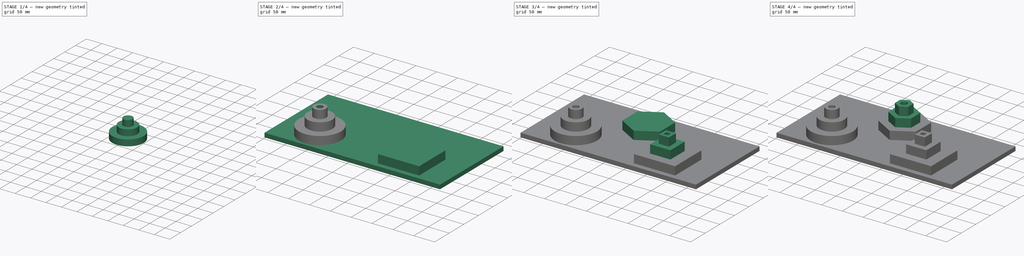
[diagram: build sequence overview — one tinted view per stage of 4, left to right]
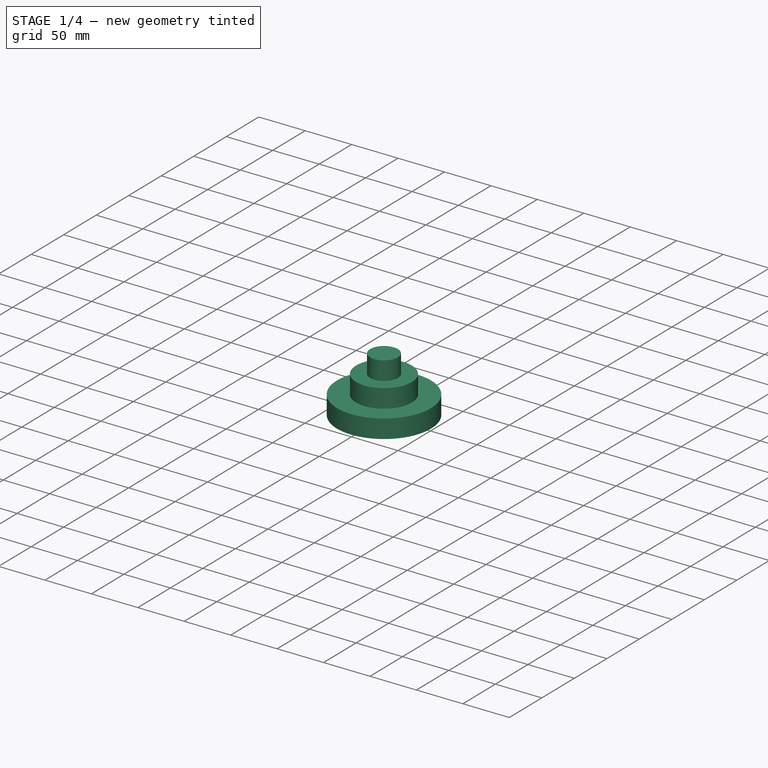
[diagram: stage 1 of 4 — iso view after this stage's code; geometry added in this stage tinted green]
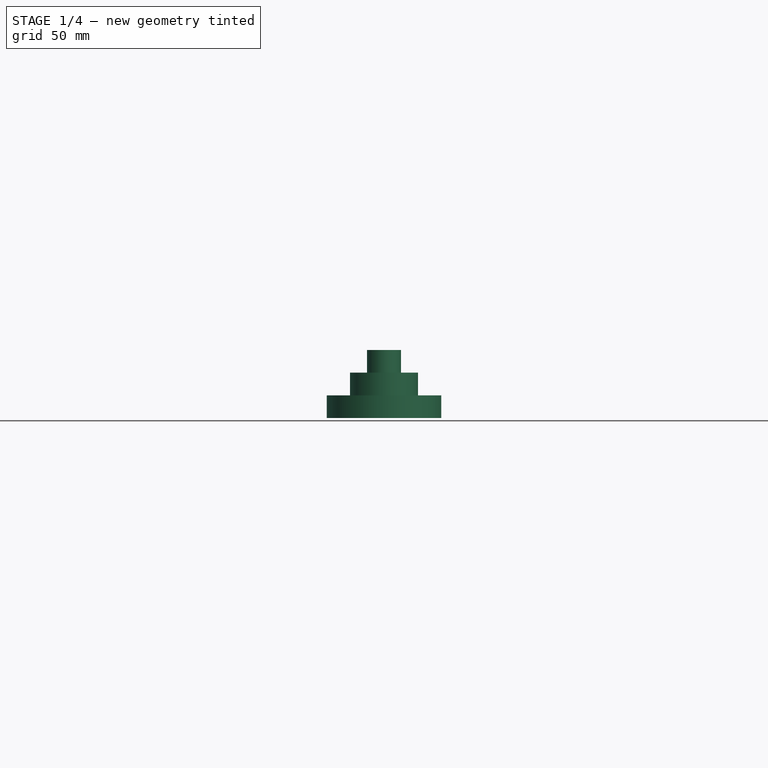
[diagram: stage 1 of 4 — front view after this stage's code; geometry added in this stage tinted green]
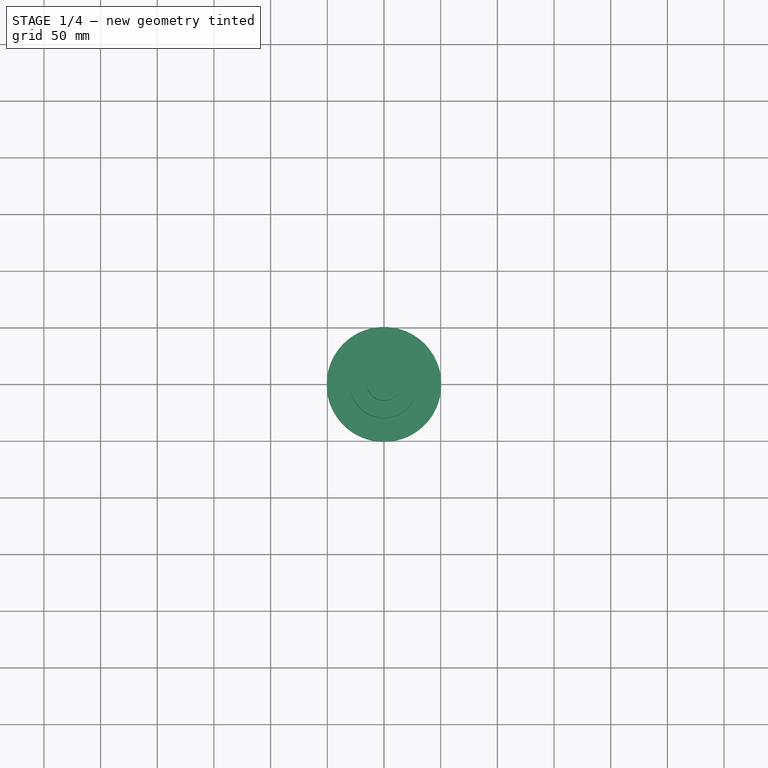
[diagram: stage 1 of 4 — top view after this stage's code; geometry added in this stage tinted green]
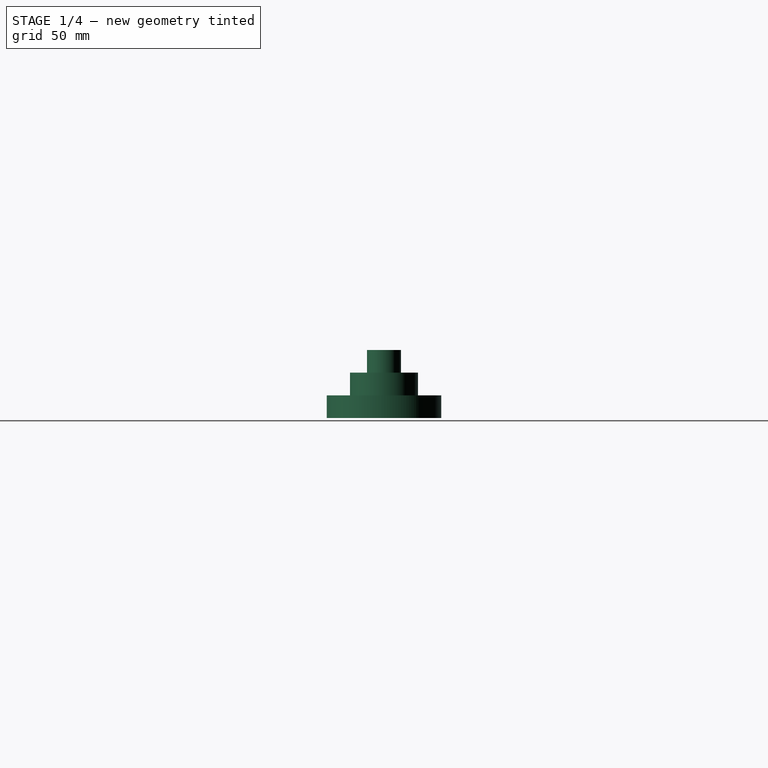
[diagram: stage 1 of 4 — right view after this stage's code; geometry added in this stage tinted green]
FCSTD DOCUMENT  (FreeCAD 0.20R25644 (Git))
Label: chamfertest
License: All rights reserved
LicenseURL: http://en.wikipedia.org/wiki/All_rights_reserved
objects: Sketcher::SketchObject×13, PartDesign::Pad×10, PartDesign::Pocket×3, PartDesign::Body×1
note: 40 computed .brp shape members not serialized (recipe doc carries the construction recipe); baked Part::Feature solids carry a one-line shape summary decoded from their .brp

FEATURE [Sketcher::SketchObject] Sketch
  FullyConstrained = false
  MapMode = 5
  Support = -> [XY_Plane]
  sketch-geometry (1):
    g0: Circle CenterX=0 CenterY=0 CenterZ=0 NormalX=0 NormalY=0 NormalZ=1 AngleXU=0 Radius=50.5402
  constraints (1):
    c: Coincident(g0,g-1)
FEATURE [PartDesign::Pad] Pad
  Direction = (0,0,1)
  Length = 20
  Length2 = 100
  Profile = -> Sketch
  Type = 0
FEATURE [Sketcher::SketchObject] Sketch001
  FullyConstrained = false
  MapMode = 5
  Placement = pos=(0,0,20) rot=(0,0,1;0rad)
  Support = -> [Pad]
  sketch-geometry (1):
    g0: Circle CenterX=0 CenterY=0 CenterZ=0 NormalX=0 NormalY=0 NormalZ=1 AngleXU=0 Radius=30.0277
  constraints (1):
    c: Coincident(g0,g-1)
FEATURE [PartDesign::Pad] Pad001
  BaseFeature = -> Pad
  Direction = (0,0,1)
  Length = 20
  Length2 = 100
  Profile = -> Sketch001
  Type = 0
FEATURE [Sketcher::SketchObject] Sketch002
  FullyConstrained = false
  MapMode = 5
  Placement = pos=(0,0,40) rot=(0,0,1;0rad)
  Support = -> [Pad001]
  sketch-geometry (1):
    g0: Circle CenterX=0 CenterY=0 CenterZ=0 NormalX=0 NormalY=0 NormalZ=1 AngleXU=0 Radius=15.0086
  constraints (1):
    c: Coincident(g0,g-1)
FEATURE [PartDesign::Pad] Pad002
  BaseFeature = -> Pad001
  Direction = (0,0,1)
  Length = 20
  Length2 = 100
  Profile = -> Sketch002
  Type = 0
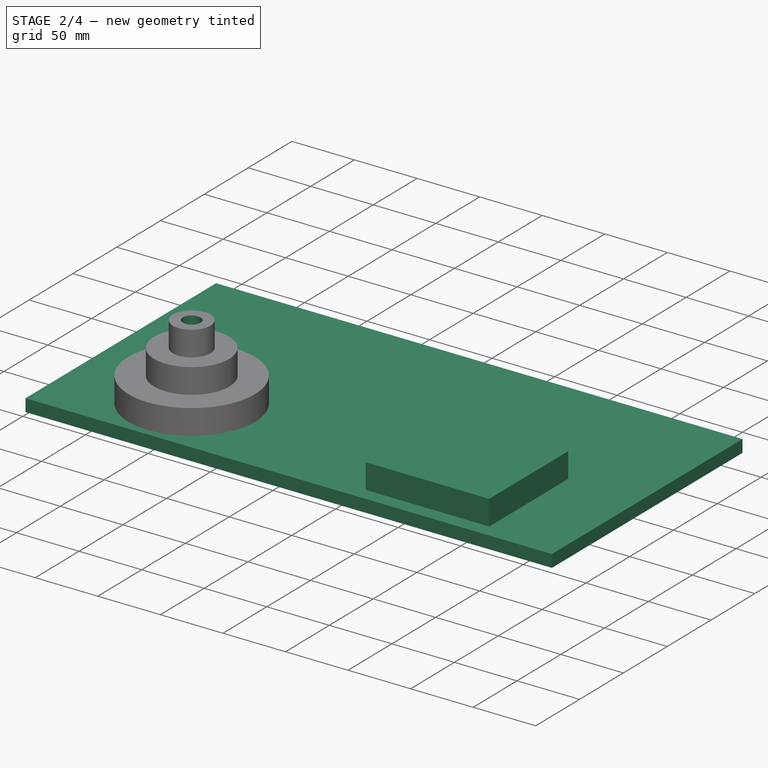
[diagram: stage 2 of 4 — iso view after this stage's code; geometry added in this stage tinted green]
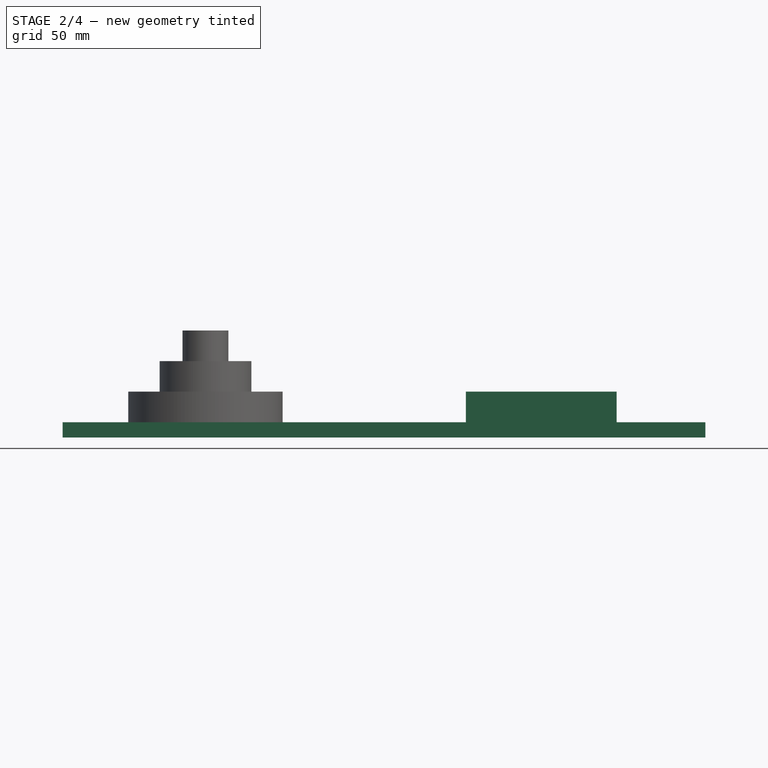
[diagram: stage 2 of 4 — front view after this stage's code; geometry added in this stage tinted green]
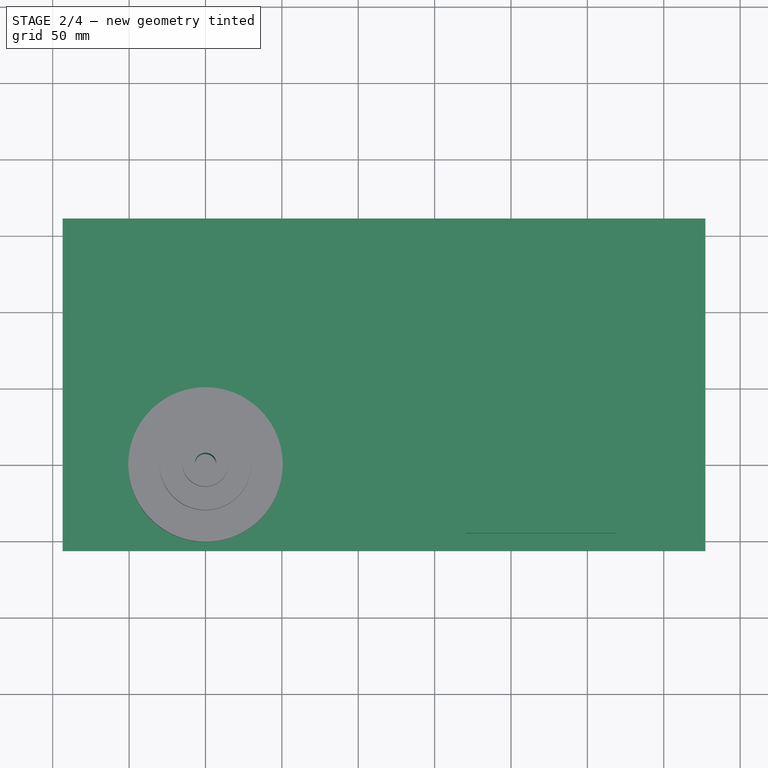
[diagram: stage 2 of 4 — top view after this stage's code; geometry added in this stage tinted green]
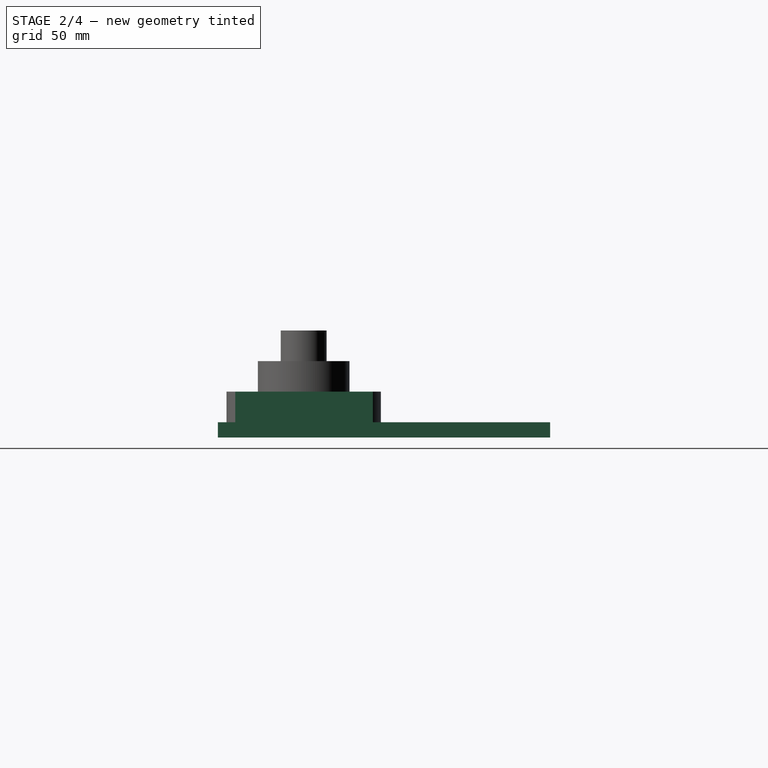
[diagram: stage 2 of 4 — right view after this stage's code; geometry added in this stage tinted green]
FEATURE [Sketcher::SketchObject] Sketch003
  FullyConstrained = false
  MapMode = 5
  Placement = pos=(0,0,60) rot=(0,0,1;0rad)
  Support = -> [Pad002]
  sketch-geometry (1):
    g0: Circle CenterX=0 CenterY=0 CenterZ=0 NormalX=0 NormalY=0 NormalZ=1 AngleXU=0 Radius=7.05067
  constraints (1):
    c: Coincident(g0,g-1)
FEATURE [PartDesign::Pocket] Pocket
  BaseFeature = -> Pad002
  Length = 5
  Length2 = 100
  Profile = -> Sketch003
  Type = 1
FEATURE [Sketcher::SketchObject] Sketch004
  FullyConstrained = false
  MapMode = 5
  Support = -> [XY_Plane]
  sketch-geometry (4):
    g0: LineSegment StartX=-93.4997 StartY=-56.2221 StartZ=0 EndX=327.246 EndY=-56.2221 EndZ=0
    g1: LineSegment StartX=327.246 StartY=-56.2221 StartZ=0 EndX=327.246 EndY=161.359 EndZ=0
    g2: LineSegment StartX=327.246 StartY=161.359 StartZ=0 EndX=-93.4997 EndY=161.359 EndZ=0
    g3: LineSegment StartX=-93.4997 StartY=161.359 StartZ=0 EndX=-93.4997 EndY=-56.2221 EndZ=0
  constraints (8):
    c: Coincident(g0,g1)
    c: Coincident(g1,g2)
    c: Coincident(g2,g3)
    c: Coincident(g3,g0)
    c: Horizontal(g0)
    c: Horizontal(g2)
    c: Vertical(g1)
    c: Vertical(g3)
FEATURE [PartDesign::Pad] Pad003
  BaseFeature = -> Pocket
  Direction = (0,0,1)
  Length = 10
  Length2 = 100
  Profile = -> Sketch004
  Reversed = true
  Type = 0
FEATURE [Sketcher::SketchObject] Sketch005
  FullyConstrained = false
  MapMode = 5
  Support = -> [Pad003]
  sketch-geometry (4):
    g0: LineSegment StartX=170.439 StartY=45.3252 StartZ=0 EndX=269.196 EndY=45.3252 EndZ=0
    g1: LineSegment StartX=269.196 StartY=45.3252 StartZ=0 EndX=269.196 EndY=-44.7904 EndZ=0
    g2: LineSegment StartX=269.196 StartY=-44.7904 StartZ=0 EndX=170.439 EndY=-44.7904 EndZ=0
    g3: LineSegment StartX=170.439 StartY=-44.7904 StartZ=0 EndX=170.439 EndY=45.3252 EndZ=0
  constraints (8):
    c: Coincident(g0,g1)
    c: Coincident(g1,g2)
    c: Coincident(g2,g3)
    c: Coincident(g3,g0)
    c: Horizontal(g0)
    c: Horizontal(g2)
    c: Vertical(g1)
    c: Vertical(g3)
FEATURE [PartDesign::Pad] Pad004
  BaseFeature = -> Pad003
  Direction = (0,0,1)
  Length = 20
  Length2 = 100
  Profile = -> Sketch005
  Type = 0
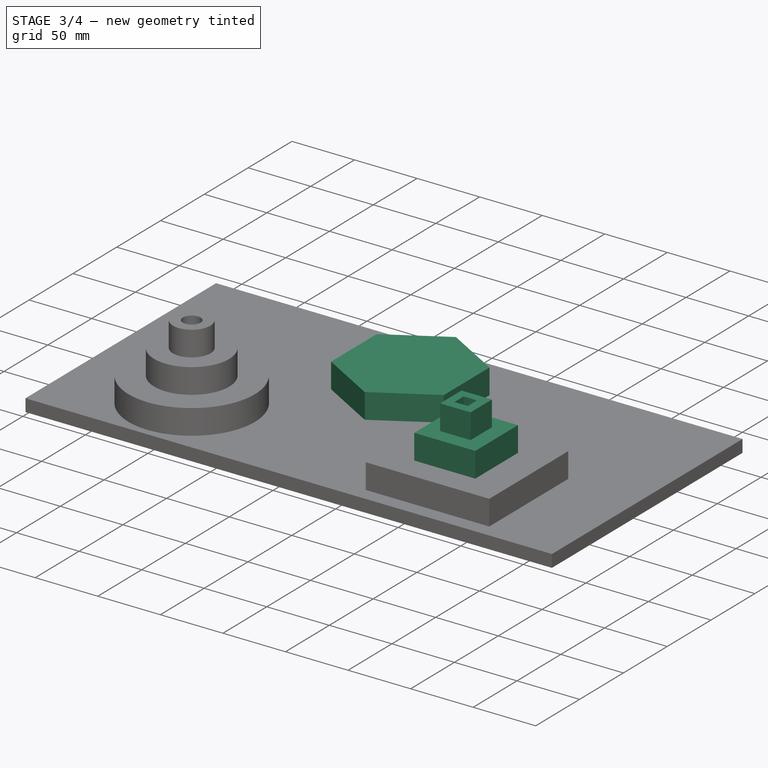
[diagram: stage 3 of 4 — iso view after this stage's code; geometry added in this stage tinted green]
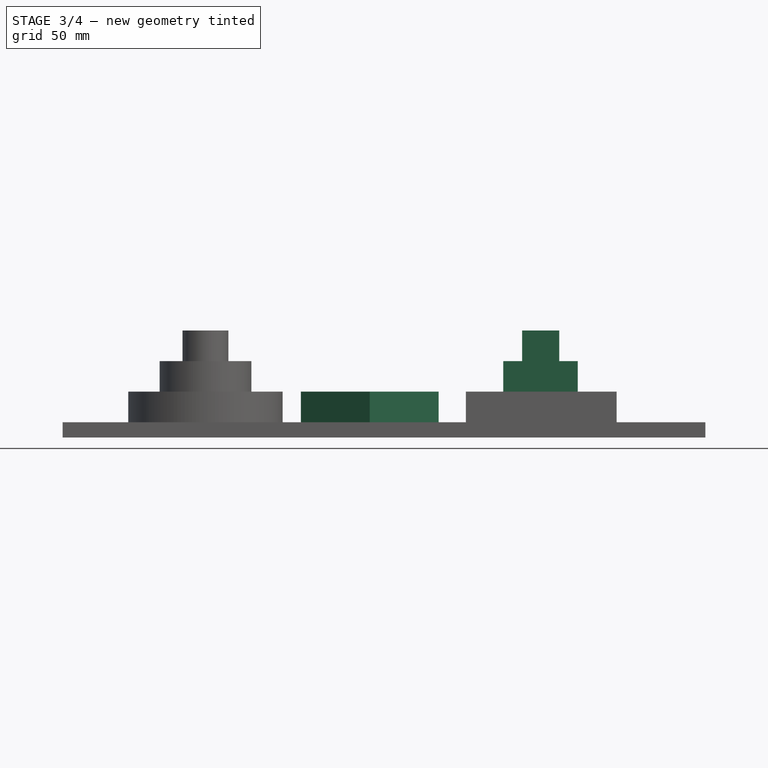
[diagram: stage 3 of 4 — front view after this stage's code; geometry added in this stage tinted green]
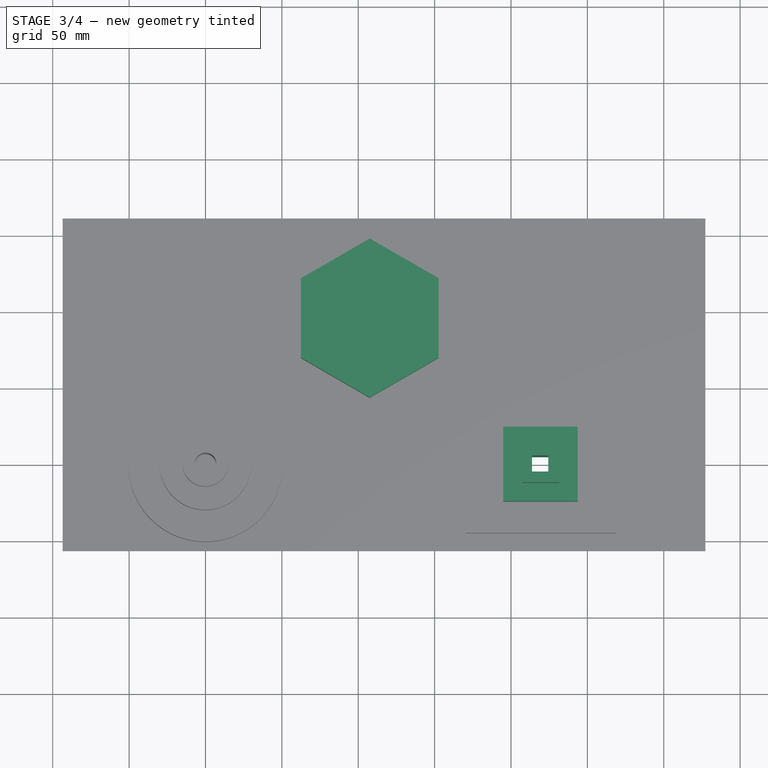
[diagram: stage 3 of 4 — top view after this stage's code; geometry added in this stage tinted green]
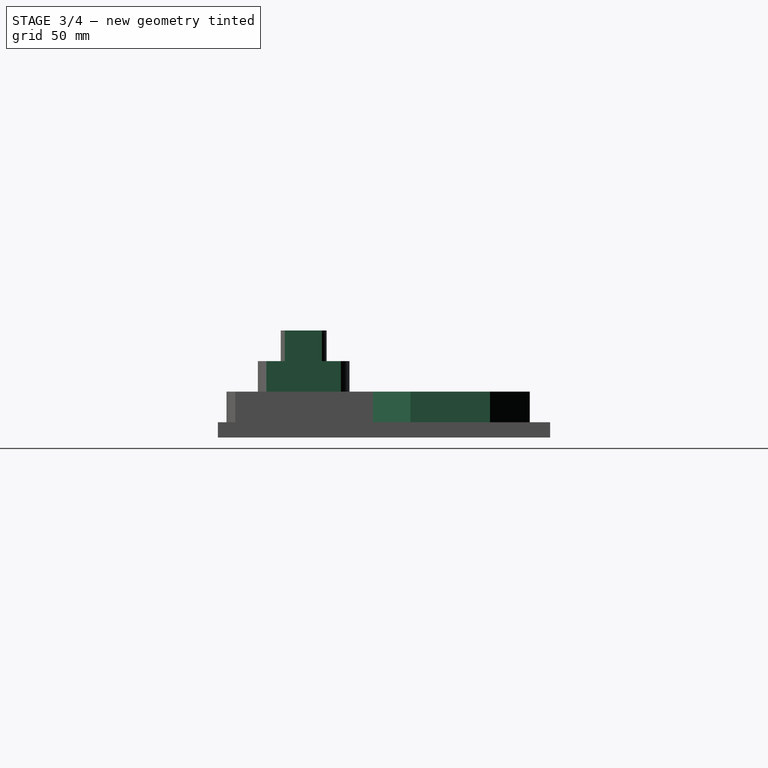
[diagram: stage 3 of 4 — right view after this stage's code; geometry added in this stage tinted green]
FEATURE [Sketcher::SketchObject] Sketch006
  FullyConstrained = false
  MapMode = 5
  Placement = pos=(0,0,20) rot=(0,0,1;0rad)
  Support = -> [Pad004]
  sketch-geometry (4):
    g0: LineSegment StartX=194.97 StartY=24.3582 StartZ=0 EndX=243.732 EndY=24.3582 EndZ=0
    g1: LineSegment StartX=243.732 StartY=24.3582 StartZ=0 EndX=243.732 EndY=-24.4029 EndZ=0
    g2: LineSegment StartX=243.732 StartY=-24.4029 StartZ=0 EndX=194.97 EndY=-24.4029 EndZ=0
    g3: LineSegment StartX=194.97 StartY=-24.4029 StartZ=0 EndX=194.97 EndY=24.3582 EndZ=0
  constraints (8):
    c: Coincident(g0,g1)
    c: Coincident(g1,g2)
    c: Coincident(g2,g3)
    c: Coincident(g3,g0)
    c: Horizontal(g0)
    c: Horizontal(g2)
    c: Vertical(g1)
    c: Vertical(g3)
FEATURE [PartDesign::Pad] Pad005
  BaseFeature = -> Pad004
  Direction = (0,0,1)
  Length = 20
  Length2 = 100
  Profile = -> Sketch006
  Type = 0
FEATURE [Sketcher::SketchObject] Sketch007
  FullyConstrained = false
  MapMode = 5
  Placement = pos=(0,0,40) rot=(0,0,1;0rad)
  Support = -> [Pad005]
  sketch-geometry (4):
    g0: LineSegment StartX=207.256 StartY=11.8946 StartZ=0 EndX=231.575 EndY=11.8946 EndZ=0
    g1: LineSegment StartX=231.575 StartY=11.8946 StartZ=0 EndX=231.575 EndY=-12.4065 EndZ=0
    g2: LineSegment StartX=231.575 StartY=-12.4065 StartZ=0 EndX=207.256 EndY=-12.4065 EndZ=0
    g3: LineSegment StartX=207.256 StartY=-12.4065 StartZ=0 EndX=207.256 EndY=11.8946 EndZ=0
  constraints (8):
    c: Coincident(g0,g1)
    c: Coincident(g1,g2)
    c: Coincident(g2,g3)
    c: Coincident(g3,g0)
    c: Horizontal(g0)
    c: Horizontal(g2)
    c: Vertical(g1)
    c: Vertical(g3)
FEATURE [PartDesign::Pad] Pad006
  BaseFeature = -> Pad005
  Direction = (0,0,1)
  Length = 20
  Length2 = 100
  Profile = -> Sketch007
  Type = 0
FEATURE [Sketcher::SketchObject] Sketch008
  FullyConstrained = false
  MapMode = 5
  Placement = pos=(0,0,60) rot=(0,0,1;0rad)
  Support = -> [Pad006]
  sketch-geometry (4):
    g0: LineSegment StartX=213.744 StartY=5.21048 StartZ=0 EndX=224.398 EndY=5.21048 EndZ=0
    g1: LineSegment StartX=224.398 StartY=5.21048 StartZ=0 EndX=224.398 EndY=-5.29181 EndZ=0
    g2: LineSegment StartX=224.398 StartY=-5.29181 StartZ=0 EndX=213.744 EndY=-5.29181 EndZ=0
    g3: LineSegment StartX=213.744 StartY=-5.29181 StartZ=0 EndX=213.744 EndY=5.21048 EndZ=0
  constraints (8):
    c: Coincident(g0,g1)
    c: Coincident(g1,g2)
    c: Coincident(g2,g3)
    c: Coincident(g3,g0)
    c: Horizontal(g0)
    c: Horizontal(g2)
    c: Vertical(g1)
    c: Vertical(g3)
FEATURE [PartDesign::Pocket] Pocket001
  BaseFeature = -> Pad006
  Length = 5
  Length2 = 100
  Profile = -> Sketch008
  Type = 1
FEATURE [Sketcher::SketchObject] Sketch009
  FullyConstrained = false
  MapMode = 5
  Support = -> [Pocket001]
  sketch-geometry (7):
    g0: LineSegment StartX=152.636 StartY=69.882 StartZ=0 EndX=152.636 EndY=121.929 EndZ=0
    g1: LineSegment StartX=152.636 StartY=121.929 StartZ=0 EndX=107.562 EndY=147.952 EndZ=0
    g2: LineSegment StartX=107.562 StartY=147.952 StartZ=0 EndX=62.4882 EndY=121.929 EndZ=0
    g3: LineSegment StartX=62.4882 StartY=121.929 StartZ=0 EndX=62.4882 EndY=69.882 EndZ=0
    g4: LineSegment StartX=62.4882 StartY=69.882 StartZ=0 EndX=107.562 EndY=43.8585 EndZ=0
    g5: LineSegment StartX=107.562 StartY=43.8585 StartZ=0 EndX=152.636 EndY=69.882 EndZ=0
    g6: Circle CenterX=107.562 CenterY=95.9055 CenterZ=0 NormalX=0 NormalY=0 NormalZ=1 AngleXU=0 Radius=52.047
  constraints (14):
    c: Coincident(g0,g1)
    c: Coincident(g1,g2)
    c: Coincident(g2,g3)
    c: Coincident(g3,g4)
    c: Coincident(g4,g5)
    c: Coincident(g5,g0)
    c: Equal(g0, g1-g5) x5
    c: PointOnObject(g0,g6)
    c: PointOnObject(g1,g6)
    c: PointOnObject(g2,g6)
    c: PointOnObject(g3,g6)
    c: PointOnObject(g4,g6)
    c: PointOnObject(g5,g6)
    c: Vertical(g4,g1)
FEATURE [PartDesign::Pad] Pad007
  BaseFeature = -> Pocket001
  Direction = (0,0,1)
  Length = 20
  Length2 = 100
  Profile = -> Sketch009
  Type = 0
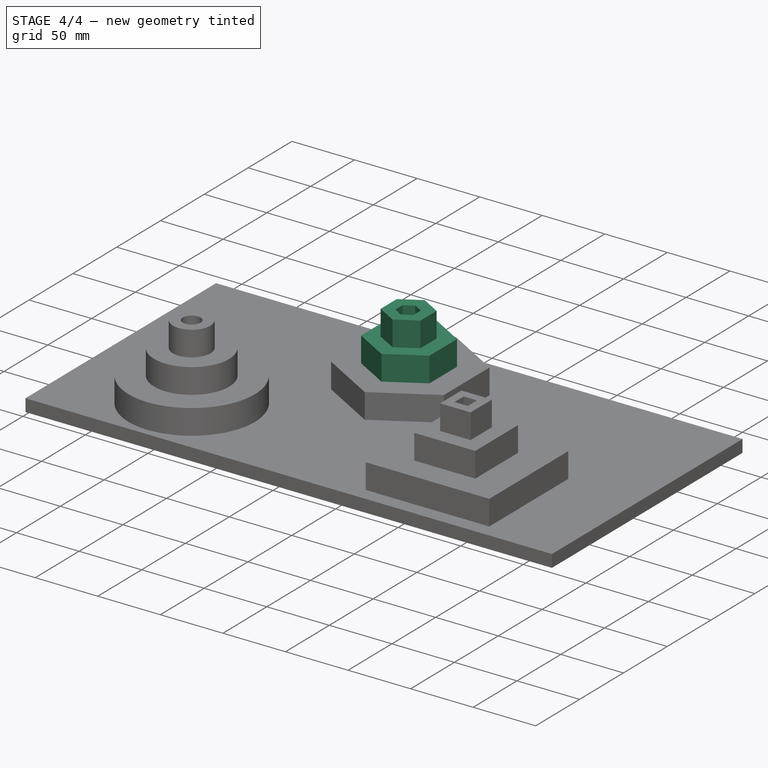
[diagram: stage 4 of 4 — iso view after this stage's code; geometry added in this stage tinted green]
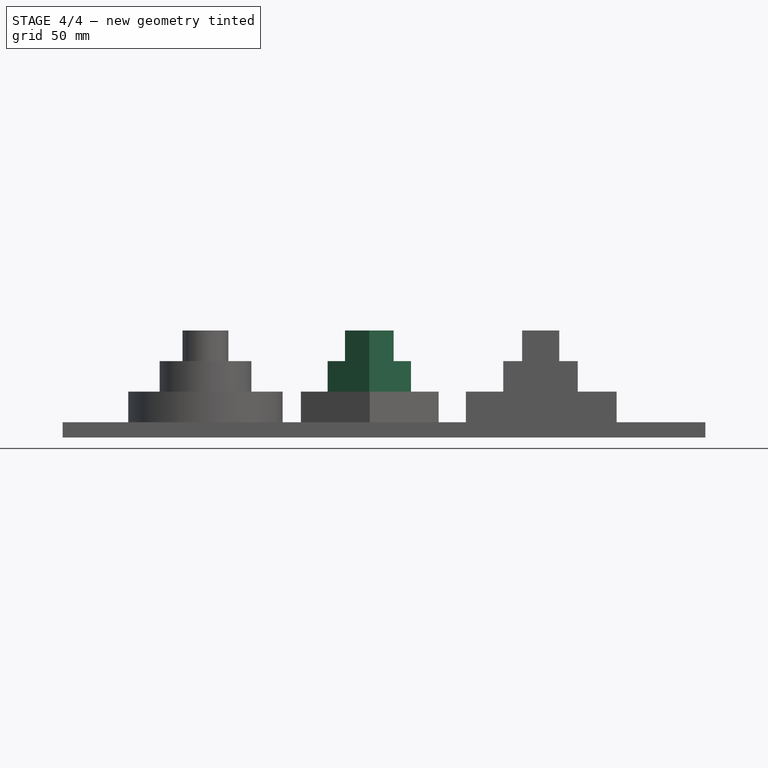
[diagram: stage 4 of 4 — front view after this stage's code; geometry added in this stage tinted green]
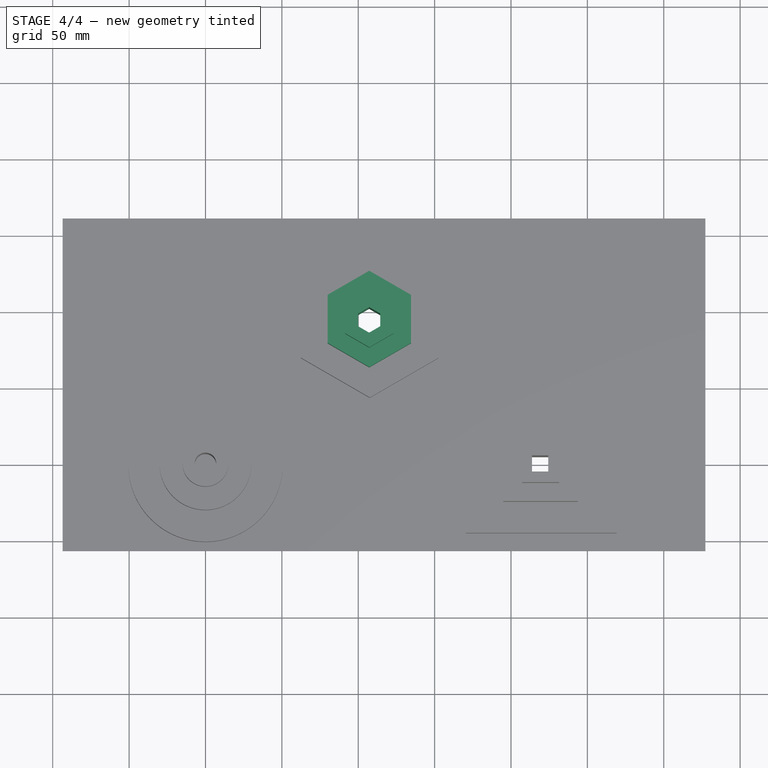
[diagram: stage 4 of 4 — top view after this stage's code; geometry added in this stage tinted green]
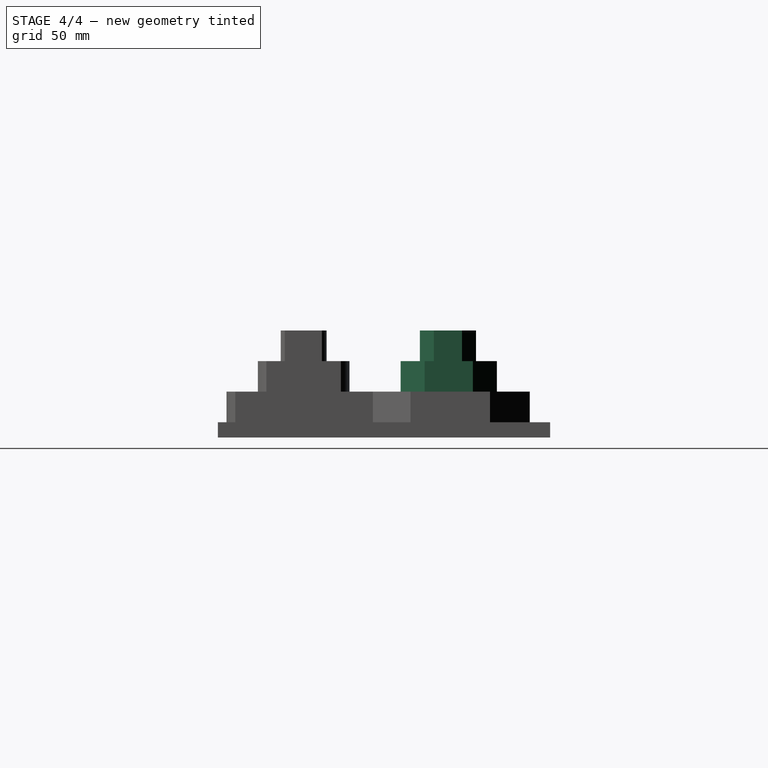
[diagram: stage 4 of 4 — right view after this stage's code; geometry added in this stage tinted green]
FEATURE [Sketcher::SketchObject] Sketch010
  FullyConstrained = false
  MapMode = 5
  Placement = pos=(0,0,20) rot=(0,0,1;0rad)
  Support = -> [Pad007]
  sketch-geometry (7):
    g0: LineSegment StartX=107.233 StartY=63.4291 StartZ=0 EndX=134.534 EndY=79.1911 EndZ=0
    g1: LineSegment StartX=134.534 StartY=79.1911 StartZ=0 EndX=134.534 EndY=110.715 EndZ=0
    g2: LineSegment StartX=134.534 StartY=110.715 StartZ=0 EndX=107.233 EndY=126.477 EndZ=0
    g3: LineSegment StartX=107.233 StartY=126.477 StartZ=0 EndX=79.9328 EndY=110.715 EndZ=0
    g4: LineSegment StartX=79.9328 StartY=110.715 StartZ=0 EndX=79.9328 EndY=79.1911 EndZ=0
    g5: LineSegment StartX=79.9328 StartY=79.1911 StartZ=0 EndX=107.233 EndY=63.4291 EndZ=0
    g6: Circle CenterX=107.233 CenterY=94.9531 CenterZ=0 NormalX=0 NormalY=0 NormalZ=1 AngleXU=0 Radius=31.524
  constraints (14):
    c: Coincident(g0,g1)
    c: Coincident(g1,g2)
    c: Coincident(g2,g3)
    c: Coincident(g3,g4)
    c: Coincident(g4,g5)
    c: Coincident(g5,g0)
    c: Equal(g0, g1-g5) x5
    c: PointOnObject(g0,g6)
    c: PointOnObject(g1,g6)
    c: PointOnObject(g2,g6)
    c: PointOnObject(g3,g6)
    c: PointOnObject(g4,g6)
    c: PointOnObject(g5,g6)
    c: Vertical(g2,g0)
FEATURE [PartDesign::Pad] Pad008
  BaseFeature = -> Pad007
  Direction = (0,0,1)
  Length = 20
  Length2 = 100
  Profile = -> Sketch010
  Type = 0
FEATURE [Sketcher::SketchObject] Sketch011
  FullyConstrained = false
  MapMode = 5
  Placement = pos=(0,0,40) rot=(0,0,1;0rad)
  Support = -> [Pad008]
  sketch-geometry (7):
    g0: LineSegment StartX=107.228 StartY=76.0608 StartZ=0 EndX=123.145 EndY=85.2505 EndZ=0
    g1: LineSegment StartX=123.145 StartY=85.2505 StartZ=0 EndX=123.145 EndY=103.63 EndZ=0
    g2: LineSegment StartX=123.145 StartY=103.63 StartZ=0 EndX=107.228 EndY=112.82 EndZ=0
    g3: LineSegment StartX=107.228 StartY=112.82 StartZ=0 EndX=91.3107 EndY=103.63 EndZ=0
    g4: LineSegment StartX=91.3107 StartY=103.63 StartZ=0 EndX=91.3107 EndY=85.2505 EndZ=0
    g5: LineSegment StartX=91.3107 StartY=85.2505 StartZ=0 EndX=107.228 EndY=76.0608 EndZ=0
    g6: Circle CenterX=107.228 CenterY=94.4402 CenterZ=0 NormalX=0 NormalY=0 NormalZ=1 AngleXU=0 Radius=18.3794
  constraints (14):
    c: Coincident(g0,g1)
    c: Coincident(g1,g2)
    c: Coincident(g2,g3)
    c: Coincident(g3,g4)
    c: Coincident(g4,g5)
    c: Coincident(g5,g0)
    c: Equal(g0, g1-g5) x5
    c: PointOnObject(g0,g6)
    c: PointOnObject(g1,g6)
    c: PointOnObject(g2,g6)
    c: PointOnObject(g3,g6)
    c: PointOnObject(g4,g6)
    c: PointOnObject(g5,g6)
    c: Vertical(g0,g2)
FEATURE [PartDesign::Pad] Pad009
  BaseFeature = -> Pad008
  Direction = (0,0,1)
  Length = 20
  Length2 = 100
  Profile = -> Sketch011
  Type = 0
FEATURE [Sketcher::SketchObject] Sketch012
  FullyConstrained = false
  MapMode = 5
  Placement = pos=(0,0,60) rot=(0,0,1;0rad)
  Support = -> [Pad009]
  sketch-geometry (7):
    g0: LineSegment StartX=107.152 StartY=85.5883 StartZ=0 EndX=114.401 EndY=89.7734 EndZ=0
    g1: LineSegment StartX=114.401 StartY=89.7734 StartZ=0 EndX=114.401 EndY=98.1436 EndZ=0
    g2: LineSegment StartX=114.401 StartY=98.1436 StartZ=0 EndX=107.152 EndY=102.329 EndZ=0
    g3: LineSegment StartX=107.152 StartY=102.329 StartZ=0 EndX=99.9033 EndY=98.1436 EndZ=0
    g4: LineSegment StartX=99.9033 StartY=98.1436 StartZ=0 EndX=99.9033 EndY=89.7734 EndZ=0
    g5: LineSegment StartX=99.9033 StartY=89.7734 StartZ=0 EndX=107.152 EndY=85.5883 EndZ=0
    g6: Circle CenterX=107.152 CenterY=93.9585 CenterZ=0 NormalX=0 NormalY=0 NormalZ=1 AngleXU=0 Radius=8.37016
  constraints (14):
    c: Coincident(g0,g1)
    c: Coincident(g1,g2)
    c: Coincident(g2,g3)
    c: Coincident(g3,g4)
    c: Coincident(g4,g5)
    c: Coincident(g5,g0)
    c: Equal(g0, g1-g5) x5
    c: PointOnObject(g0,g6)
    c: PointOnObject(g1,g6)
    c: PointOnObject(g2,g6)
    c: PointOnObject(g3,g6)
    c: PointOnObject(g4,g6)
    c: PointOnObject(g5,g6)
    c: Vertical(g2,g0)
FEATURE [PartDesign::Pocket] Pocket002
  BaseFeature = -> Pad009
  Length = 5
  Length2 = 100
  Profile = -> Sketch012
  Type = 1
FEATURE [PartDesign::Body] Body
  Group = -> [Sketch,Pad,Sketch001,Pad001,Sketch002,Pad002,Sketch003,Pocket,Sketch004,Pad003,Sketch005,Pad004,Sketch006,Pad005,Sketch007,Pad006,Sketch008,Pocket001,Sketch009,Pad007,Sketch010,Pad008,Sketch011,Pad009,Sketch012,Pocket002]
  Origin = -> Origin
  Tip = -> Pocket002
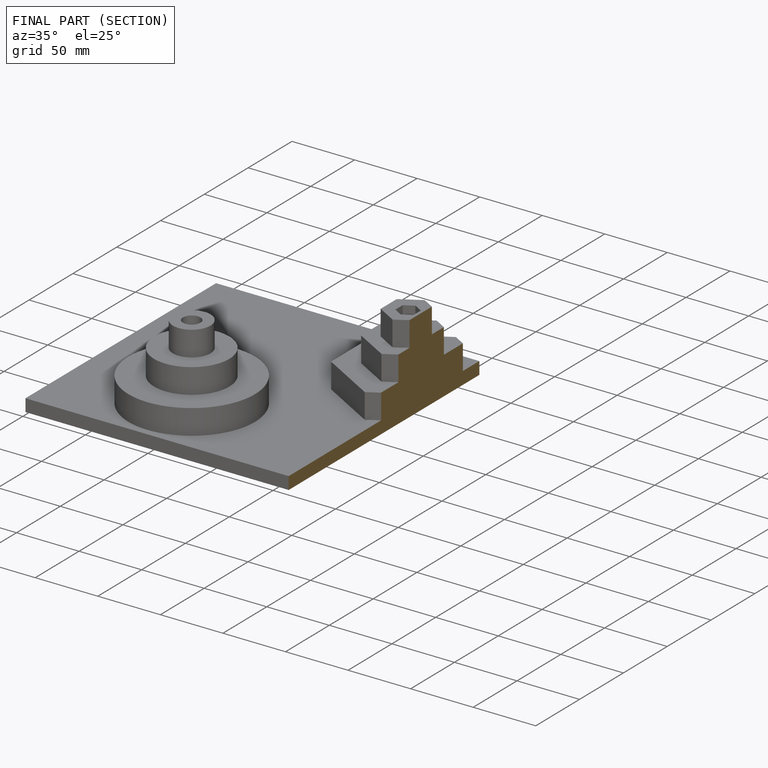
[diagram: finished part — half-section view (interior)]
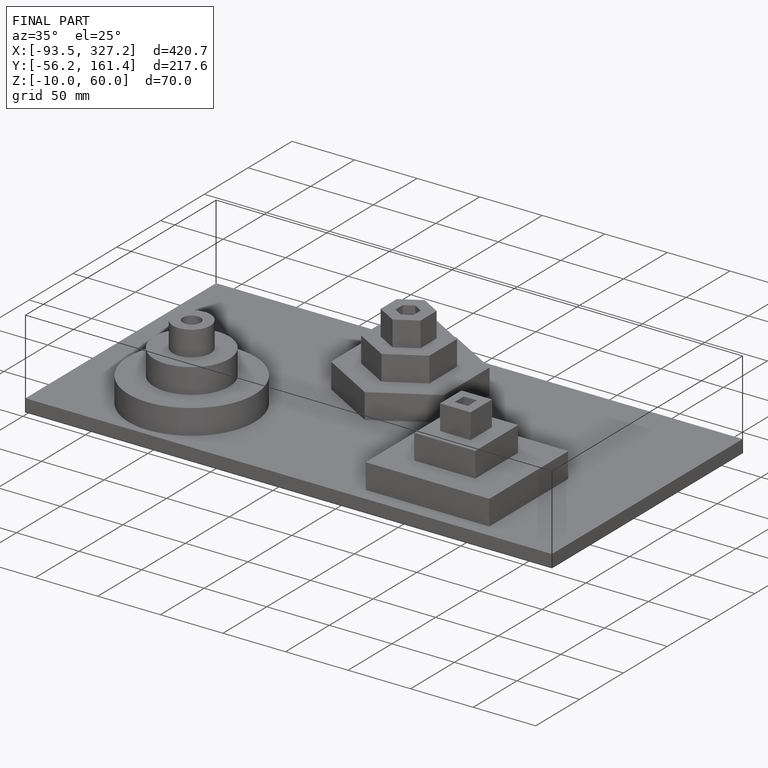
[diagram: finished part — iso view with bounding-box wireframe]
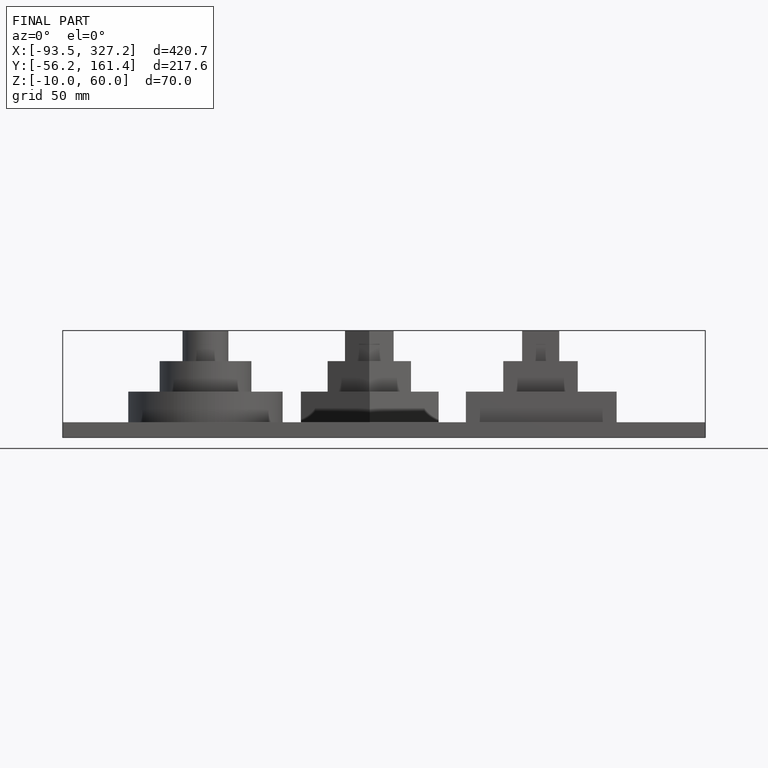
[diagram: finished part — front view with bounding-box wireframe]
